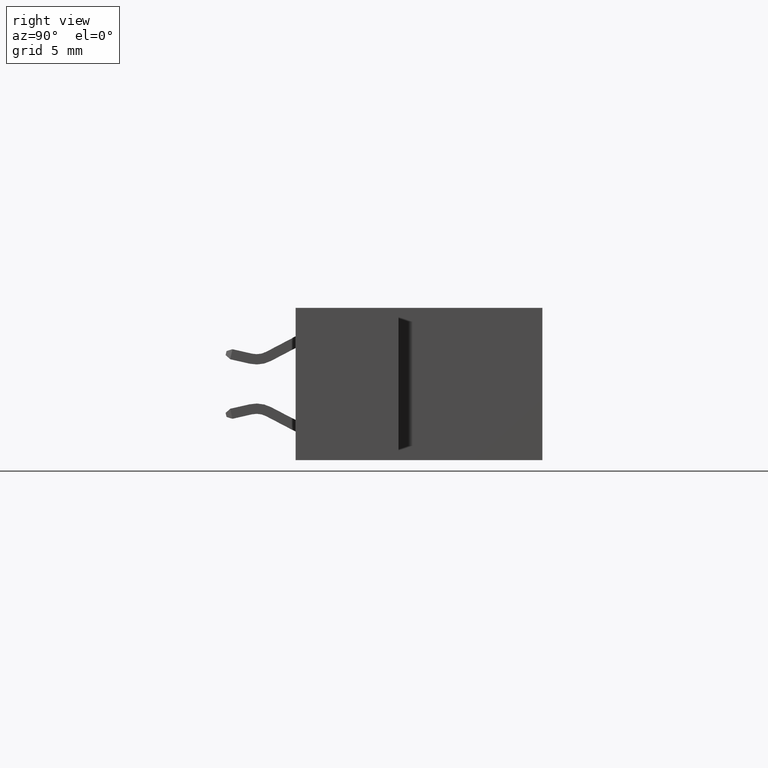
[diagram: clean part render]
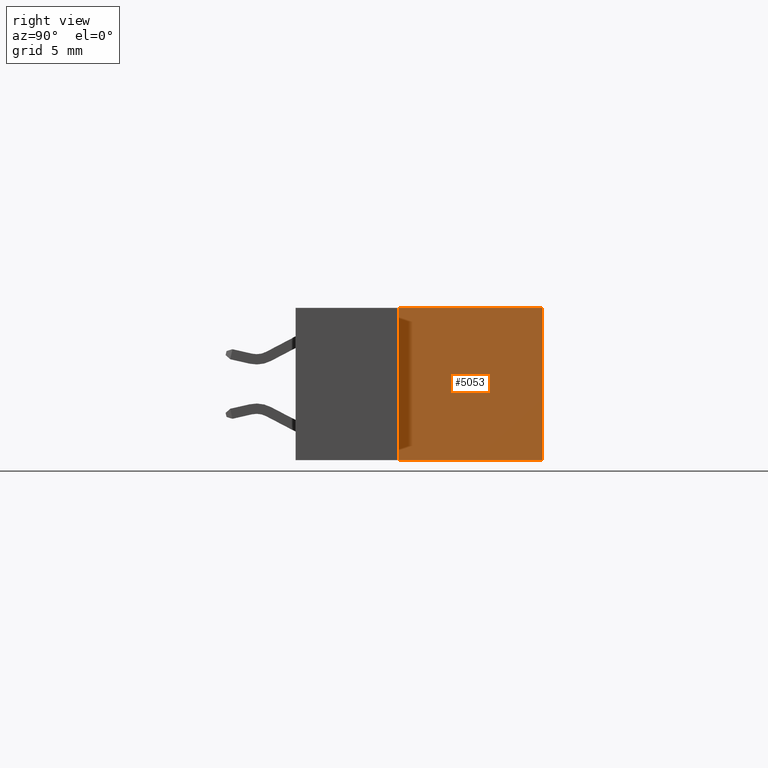
[diagram: same view with one face highlighted and labeled with its STEP entity id]
A machine part, right view. The second image highlights one B-rep face of the part: STEP entity #5053.
In plain terms, the highlighted planar face has unit normal (-1, 0, 0).
Its self-contained STEP definition (entity closure, byte-faithful):
#703 = CARTESIAN_POINT ( 'NONE',  ( 1.297500000000000100, 0.2500000000000000000, 0.0000000000000000000 ) ) ;
#749 = FACE_OUTER_BOUND ( 'NONE', #5412, .T. ) ;
#1170 = CARTESIAN_POINT ( 'NONE',  ( 1.297500000000000100, 0.5999999999999999800, -0.3699999999999999400 ) ) ;
#1331 = VECTOR ( 'NONE', #3582, 39.37007874015748100 ) ;
#1750 = ORIENTED_EDGE ( 'NONE', *, *, #9399, .F. ) ;
#1862 = DIRECTION ( 'NONE',  ( -0.0000000000000000000, -0.0000000000000000000, 1.000000000000000000 ) ) ;
#2322 = AXIS2_PLACEMENT_3D ( 'NONE', #703, #4040, #3939 ) ;
#2740 = CARTESIAN_POINT ( 'NONE',  ( 1.297500000000000100, 0.2500000000000000000, 0.0000000000000000000 ) ) ;
#3084 = CARTESIAN_POINT ( 'NONE',  ( 1.297500000000000100, 0.2500000000000000000, 0.0000000000000000000 ) ) ;
#3582 = DIRECTION ( 'NONE',  ( -0.0000000000000000000, 1.000000000000000000, -0.0000000000000000000 ) ) ;
#3611 = CARTESIAN_POINT ( 'NONE',  ( 1.297500000000000100, 0.2500000000000000000, 0.0000000000000000000 ) ) ;
#3703 = LINE ( 'NONE', #9232, #4435 ) ;
#3812 = ORIENTED_EDGE ( 'NONE', *, *, #9195, .T. ) ;
#3939 = DIRECTION ( 'NONE',  ( -0.0000000000000000000, 0.0000000000000000000, 1.000000000000000000 ) ) ;
#4040 = DIRECTION ( 'NONE',  ( -1.000000000000000000, 0.0000000000000000000, -0.0000000000000000000 ) ) ;
#4435 = VECTOR ( 'NONE', #4579, 39.37007874015748100 ) ;
#4579 = DIRECTION ( 'NONE',  ( -0.0000000000000000000, -0.0000000000000000000, 1.000000000000000000 ) ) ;
#4669 = LINE ( 'NONE', #7193, #8190 ) ;
#4788 = EDGE_CURVE ( 'NONE', #7069, #7126, #3703, .T. ) ;
#5053 = ADVANCED_FACE ( 'NONE', ( #749 ), #10036, .F. ) ;
#5412 = EDGE_LOOP ( 'NONE', ( #7293, #1750, #6183, #3812 ) ) ;
#5542 = LINE ( 'NONE', #2740, #9560 ) ;
#5847 = EDGE_CURVE ( 'NONE', #9829, #7211, #5542, .T. ) ;
#6183 = ORIENTED_EDGE ( 'NONE', *, *, #5847, .F. ) ;
#6351 = LINE ( 'NONE', #3611, #1331 ) ;
#7069 = VERTEX_POINT ( 'NONE', #1170 ) ;
#7126 = VERTEX_POINT ( 'NONE', #9256 ) ;
#7193 = CARTESIAN_POINT ( 'NONE',  ( 1.297500000000000100, 0.2500000000000000000, -0.3699999999999999400 ) ) ;
#7211 = VERTEX_POINT ( 'NONE', #3084 ) ;
#7293 = ORIENTED_EDGE ( 'NONE', *, *, #4788, .T. ) ;
#8190 = VECTOR ( 'NONE', #9498, 39.37007874015748100 ) ;
#9195 = EDGE_CURVE ( 'NONE', #9829, #7069, #4669, .T. ) ;
#9232 = CARTESIAN_POINT ( 'NONE',  ( 1.297500000000000100, 0.5999999999999999800, 0.0000000000000000000 ) ) ;
#9256 = CARTESIAN_POINT ( 'NONE',  ( 1.297500000000000100, 0.5999999999999999800, 0.0000000000000000000 ) ) ;
#9399 = EDGE_CURVE ( 'NONE', #7211, #7126, #6351, .T. ) ;
#9498 = DIRECTION ( 'NONE',  ( -0.0000000000000000000, 1.000000000000000000, -0.0000000000000000000 ) ) ;
#9560 = VECTOR ( 'NONE', #1862, 39.37007874015748100 ) ;
#9829 = VERTEX_POINT ( 'NONE', #9958 ) ;
#9958 = CARTESIAN_POINT ( 'NONE',  ( 1.297500000000000100, 0.2500000000000000000, -0.3699999999999999400 ) ) ;
#10036 = PLANE ( 'NONE',  #2322 ) ;